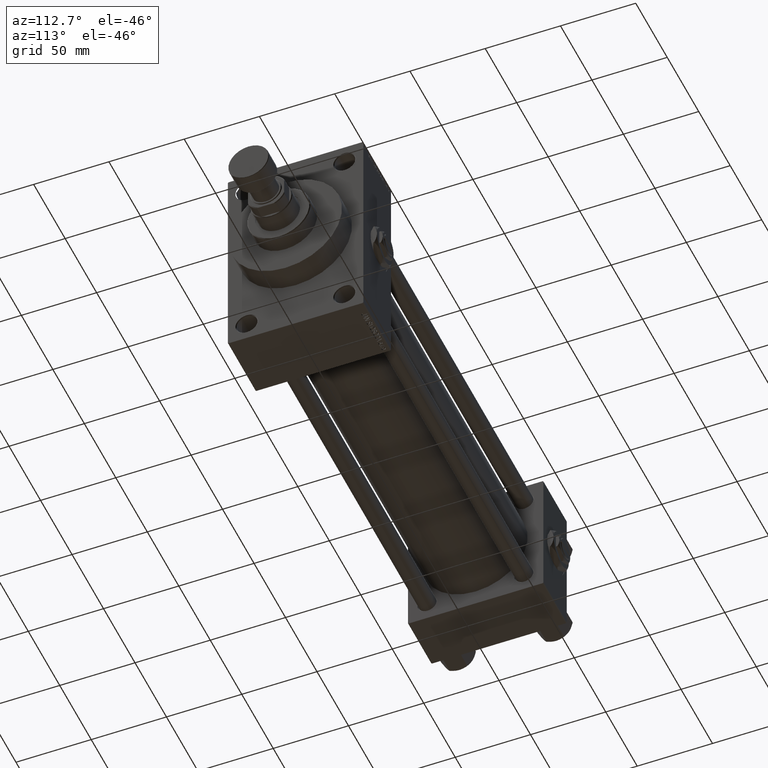
[diagram: clean part render]
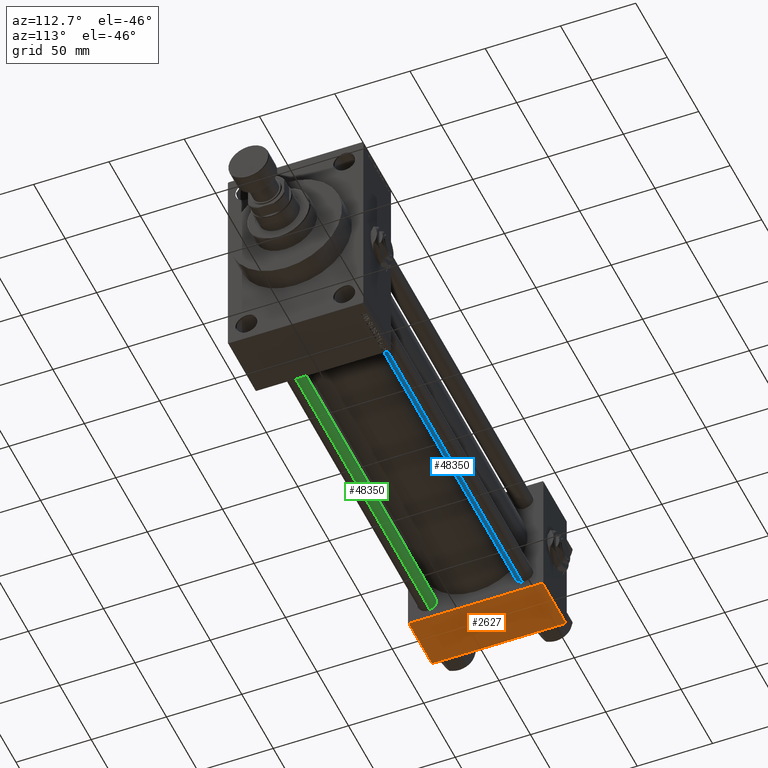
[diagram: same view with three faces highlighted in distinct colors, each labeled with its STEP entity id]
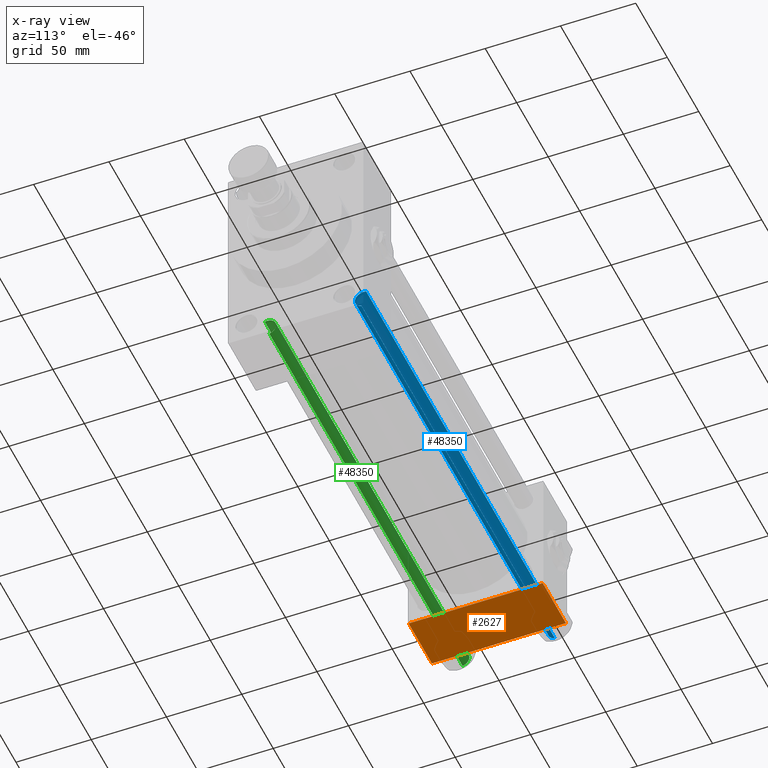
[diagram: x-ray of the same camera — body ghosted, the three highlighted faces saturated]
A machine part, auxiliary view with three faces highlighted in distinct colors.
The next image is the same camera in x-ray (body ghosted, the three faces saturated) — at least one of them is partly hidden behind the body in this view.
Their STEP definitions:

[orange] entity #2627 — the highlighted planar face has unit normal (0, 0, -1).
#988 = LINE ( 'NONE', #20334, #33075 ) ;
#1897 = EDGE_CURVE ( 'NONE', #1996, #45125, #988, .T. ) ;
#1996 = VERTEX_POINT ( 'NONE', #48014 ) ;
#2097 = EDGE_LOOP ( 'NONE', ( #47334, #39949, #8511, #14999 ) ) ;
#2208 = LINE ( 'NONE', #13534, #16404 ) ;
#2627 = ADVANCED_FACE ( 'NONE', ( #44704 ), #21040, .T. ) ;
#3983 = VECTOR ( 'NONE', #4827, 1000.000000000000000 ) ;
#4827 = DIRECTION ( 'NONE',  ( 1.000000000000000000, 0.000000000000000000, 0.000000000000000000 ) ) ;
#6553 = EDGE_CURVE ( 'NONE', #24904, #45125, #2208, .T. ) ;
#8511 = ORIENTED_EDGE ( 'NONE', *, *, #10691, .T. ) ;
#10691 = EDGE_CURVE ( 'NONE', #24457, #1996, #15624, .T. ) ;
#13534 = CARTESIAN_POINT ( 'NONE',  ( 0.000000000000000000, 44.99999999999998579, -44.99999999999998579 ) ) ;
#14999 = ORIENTED_EDGE ( 'NONE', *, *, #1897, .T. ) ;
#15624 = LINE ( 'NONE', #48772, #30220 ) ;
#16404 = VECTOR ( 'NONE', #25350, 1000.000000000000000 ) ;
#20334 = CARTESIAN_POINT ( 'NONE',  ( 0.000000000000000000, -44.49999999999998579, -45.00000000000000000 ) ) ;
#20409 = CARTESIAN_POINT ( 'NONE',  ( 0.000000000000000000, 44.49999999999998579, -44.99999999999998579 ) ) ;
#21040 = PLANE ( 'NONE',  #37959 ) ;
#24457 = VERTEX_POINT ( 'NONE', #40735 ) ;
#24904 = VERTEX_POINT ( 'NONE', #20409 ) ;
#25350 = DIRECTION ( 'NONE',  ( 0.000000000000000000, -1.000000000000000000, -1.541976423090495633E-16 ) ) ;
#27730 = CARTESIAN_POINT ( 'NONE',  ( 37.00000000000000000, 44.49999999999998579, -44.99999999999998579 ) ) ;
#28372 = CARTESIAN_POINT ( 'NONE',  ( 37.00000000000000000, 44.99999999999998579, -44.99999999999998579 ) ) ;
#30220 = VECTOR ( 'NONE', #45265, 1000.000000000000000 ) ;
#32293 = EDGE_CURVE ( 'NONE', #24904, #24457, #39056, .T. ) ;
#33075 = VECTOR ( 'NONE', #43267, 1000.000000000000000 ) ;
#37959 = AXIS2_PLACEMENT_3D ( 'NONE', #28372, #44454, #47983 ) ;
#39056 = LINE ( 'NONE', #27730, #3983 ) ;
#39949 = ORIENTED_EDGE ( 'NONE', *, *, #32293, .T. ) ;
#40735 = CARTESIAN_POINT ( 'NONE',  ( 37.00000000000000000, 44.49999999999998579, -44.99999999999998579 ) ) ;
#43267 = DIRECTION ( 'NONE',  ( -1.000000000000000000, 0.000000000000000000, 0.000000000000000000 ) ) ;
#44454 = DIRECTION ( 'NONE',  ( 0.000000000000000000, 1.541976423090495880E-16, -1.000000000000000000 ) ) ;
#44704 = FACE_OUTER_BOUND ( 'NONE', #2097, .T. ) ;
#45125 = VERTEX_POINT ( 'NONE', #45155 ) ;
#45155 = CARTESIAN_POINT ( 'NONE',  ( 0.000000000000000000, -44.49999999999995737, -45.00000000000000000 ) ) ;
#45265 = DIRECTION ( 'NONE',  ( 0.000000000000000000, -1.000000000000000000, -1.541976423090495633E-16 ) ) ;
#47334 = ORIENTED_EDGE ( 'NONE', *, *, #6553, .F. ) ;
#47983 = DIRECTION ( 'NONE',  ( 0.000000000000000000, 1.000000000000000000, 1.541976423090495880E-16 ) ) ;
#48014 = CARTESIAN_POINT ( 'NONE',  ( 37.00000000000000000, -44.49999999999995737, -45.00000000000000000 ) ) ;
#48772 = CARTESIAN_POINT ( 'NONE',  ( 37.00000000000000000, 44.99999999999998579, -44.99999999999998579 ) ) ;

[blue] entity #48350 — the highlighted cylindrical surface (edge-blend (fillet) strip) has radius 6 mm, axis along (1, -0, 0).
#144 = EDGE_CURVE ( 'NONE', #37336, #24207, #5483, .T. ) ;
#456 = EDGE_CURVE ( 'NONE', #2309, #24513, #26232, .T. ) ;
#930 = EDGE_CURVE ( 'NONE', #24513, #24207, #26642, .T. ) ;
#2309 = VERTEX_POINT ( 'NONE', #44679 ) ;
#2823 = CARTESIAN_POINT ( 'NONE',  ( -6.000000000000000888, 0.000000000000000000, 308.0000000000000000 ) ) ;
#3079 = DIRECTION ( 'NONE',  ( -0.000000000000000000, -0.000000000000000000, -1.000000000000000000 ) ) ;
#3420 = CARTESIAN_POINT ( 'NONE',  ( 0.000000000000000000, 0.000000000000000000, 308.0000000000000000 ) ) ;
#3673 = DIRECTION ( 'NONE',  ( 1.000000000000000000, 0.000000000000000000, 0.000000000000000000 ) ) ;
#4264 = CARTESIAN_POINT ( 'NONE',  ( 0.000000000000000000, 0.000000000000000000, 0.5000000000000559552 ) ) ;
#5483 = LINE ( 'NONE', #20813, #6513 ) ;
#6513 = VECTOR ( 'NONE', #33639, 1000.000000000000000 ) ;
#8046 = DIRECTION ( 'NONE',  ( 1.000000000000000000, 0.000000000000000000, 0.000000000000000000 ) ) ;
#8180 = FACE_OUTER_BOUND ( 'NONE', #22981, .T. ) ;
#8299 = ORIENTED_EDGE ( 'NONE', *, *, #930, .T. ) ;
#11461 = DIRECTION ( 'NONE',  ( -1.000000000000000000, 0.000000000000000000, 0.000000000000000000 ) ) ;
#12620 = AXIS2_PLACEMENT_3D ( 'NONE', #49228, #48970, #3673 ) ;
#14196 = ORIENTED_EDGE ( 'NONE', *, *, #26761, .T. ) ;
#14765 = AXIS2_PLACEMENT_3D ( 'NONE', #3420, #38885, #11461 ) ;
#15576 = DIRECTION ( 'NONE',  ( -0.000000000000000000, -0.000000000000000000, 1.000000000000000000 ) ) ;
#16131 = VECTOR ( 'NONE', #3079, 1000.000000000000000 ) ;
#20413 = CARTESIAN_POINT ( 'NONE',  ( 6.000000000000000888, 7.347880794884120722E-16, 0.5000000000000559552 ) ) ;
#20813 = CARTESIAN_POINT ( 'NONE',  ( 6.000000000000000888, 7.347880794884120722E-16, 308.0000000000000000 ) ) ;
#22981 = EDGE_LOOP ( 'NONE', ( #48542, #14196, #28428, #8299 ) ) ;
#23091 = CIRCLE ( 'NONE', #12620, 6.000000000000000888 ) ;
#24207 = VERTEX_POINT ( 'NONE', #20413 ) ;
#24209 = AXIS2_PLACEMENT_3D ( 'NONE', #4264, #15576, #8046 ) ;
#24513 = VERTEX_POINT ( 'NONE', #25884 ) ;
#25884 = CARTESIAN_POINT ( 'NONE',  ( -6.000000000000000888, 0.000000000000000000, 0.5000000000000559552 ) ) ;
#26232 = LINE ( 'NONE', #2823, #16131 ) ;
#26642 = CIRCLE ( 'NONE', #24209, 6.000000000000000888 ) ;
#26761 = EDGE_CURVE ( 'NONE', #37336, #2309, #23091, .T. ) ;
#28428 = ORIENTED_EDGE ( 'NONE', *, *, #456, .T. ) ;
#30588 = CYLINDRICAL_SURFACE ( 'NONE', #14765, 6.000000000000000888 ) ;
#31920 = CARTESIAN_POINT ( 'NONE',  ( 6.000000000000000888, 7.347880794884120722E-16, 307.4999999999999432 ) ) ;
#33639 = DIRECTION ( 'NONE',  ( -0.000000000000000000, -0.000000000000000000, -1.000000000000000000 ) ) ;
#37336 = VERTEX_POINT ( 'NONE', #31920 ) ;
#38885 = DIRECTION ( 'NONE',  ( -0.000000000000000000, -0.000000000000000000, -1.000000000000000000 ) ) ;
#44679 = CARTESIAN_POINT ( 'NONE',  ( -6.000000000000000888, 0.000000000000000000, 307.4999999999999432 ) ) ;
#48350 = ADVANCED_FACE ( 'NONE', ( #8180 ), #30588, .T. ) ;
#48542 = ORIENTED_EDGE ( 'NONE', *, *, #144, .F. ) ;
#48970 = DIRECTION ( 'NONE',  ( 0.000000000000000000, 0.000000000000000000, -1.000000000000000000 ) ) ;
#49228 = CARTESIAN_POINT ( 'NONE',  ( 0.000000000000000000, 0.000000000000000000, 307.4999999999999432 ) ) ;

[green] entity #48350 — the highlighted cylindrical surface (edge-blend (fillet) strip) has radius 6 mm, axis along (-1, 0, 0).
#144 = EDGE_CURVE ( 'NONE', #37336, #24207, #5483, .T. ) ;
#456 = EDGE_CURVE ( 'NONE', #2309, #24513, #26232, .T. ) ;
#930 = EDGE_CURVE ( 'NONE', #24513, #24207, #26642, .T. ) ;
#2309 = VERTEX_POINT ( 'NONE', #44679 ) ;
#2823 = CARTESIAN_POINT ( 'NONE',  ( -6.000000000000000888, 0.000000000000000000, 308.0000000000000000 ) ) ;
#3079 = DIRECTION ( 'NONE',  ( -0.000000000000000000, -0.000000000000000000, -1.000000000000000000 ) ) ;
#3420 = CARTESIAN_POINT ( 'NONE',  ( 0.000000000000000000, 0.000000000000000000, 308.0000000000000000 ) ) ;
#3673 = DIRECTION ( 'NONE',  ( 1.000000000000000000, 0.000000000000000000, 0.000000000000000000 ) ) ;
#4264 = CARTESIAN_POINT ( 'NONE',  ( 0.000000000000000000, 0.000000000000000000, 0.5000000000000559552 ) ) ;
#5483 = LINE ( 'NONE', #20813, #6513 ) ;
#6513 = VECTOR ( 'NONE', #33639, 1000.000000000000000 ) ;
#8046 = DIRECTION ( 'NONE',  ( 1.000000000000000000, 0.000000000000000000, 0.000000000000000000 ) ) ;
#8180 = FACE_OUTER_BOUND ( 'NONE', #22981, .T. ) ;
#8299 = ORIENTED_EDGE ( 'NONE', *, *, #930, .T. ) ;
#11461 = DIRECTION ( 'NONE',  ( -1.000000000000000000, 0.000000000000000000, 0.000000000000000000 ) ) ;
#12620 = AXIS2_PLACEMENT_3D ( 'NONE', #49228, #48970, #3673 ) ;
#14196 = ORIENTED_EDGE ( 'NONE', *, *, #26761, .T. ) ;
#14765 = AXIS2_PLACEMENT_3D ( 'NONE', #3420, #38885, #11461 ) ;
#15576 = DIRECTION ( 'NONE',  ( -0.000000000000000000, -0.000000000000000000, 1.000000000000000000 ) ) ;
#16131 = VECTOR ( 'NONE', #3079, 1000.000000000000000 ) ;
#20413 = CARTESIAN_POINT ( 'NONE',  ( 6.000000000000000888, 7.347880794884120722E-16, 0.5000000000000559552 ) ) ;
#20813 = CARTESIAN_POINT ( 'NONE',  ( 6.000000000000000888, 7.347880794884120722E-16, 308.0000000000000000 ) ) ;
#22981 = EDGE_LOOP ( 'NONE', ( #48542, #14196, #28428, #8299 ) ) ;
#23091 = CIRCLE ( 'NONE', #12620, 6.000000000000000888 ) ;
#24207 = VERTEX_POINT ( 'NONE', #20413 ) ;
#24209 = AXIS2_PLACEMENT_3D ( 'NONE', #4264, #15576, #8046 ) ;
#24513 = VERTEX_POINT ( 'NONE', #25884 ) ;
#25884 = CARTESIAN_POINT ( 'NONE',  ( -6.000000000000000888, 0.000000000000000000, 0.5000000000000559552 ) ) ;
#26232 = LINE ( 'NONE', #2823, #16131 ) ;
#26642 = CIRCLE ( 'NONE', #24209, 6.000000000000000888 ) ;
#26761 = EDGE_CURVE ( 'NONE', #37336, #2309, #23091, .T. ) ;
#28428 = ORIENTED_EDGE ( 'NONE', *, *, #456, .T. ) ;
#30588 = CYLINDRICAL_SURFACE ( 'NONE', #14765, 6.000000000000000888 ) ;
#31920 = CARTESIAN_POINT ( 'NONE',  ( 6.000000000000000888, 7.347880794884120722E-16, 307.4999999999999432 ) ) ;
#33639 = DIRECTION ( 'NONE',  ( -0.000000000000000000, -0.000000000000000000, -1.000000000000000000 ) ) ;
#37336 = VERTEX_POINT ( 'NONE', #31920 ) ;
#38885 = DIRECTION ( 'NONE',  ( -0.000000000000000000, -0.000000000000000000, -1.000000000000000000 ) ) ;
#44679 = CARTESIAN_POINT ( 'NONE',  ( -6.000000000000000888, 0.000000000000000000, 307.4999999999999432 ) ) ;
#48350 = ADVANCED_FACE ( 'NONE', ( #8180 ), #30588, .T. ) ;
#48542 = ORIENTED_EDGE ( 'NONE', *, *, #144, .F. ) ;
#48970 = DIRECTION ( 'NONE',  ( 0.000000000000000000, 0.000000000000000000, -1.000000000000000000 ) ) ;
#49228 = CARTESIAN_POINT ( 'NONE',  ( 0.000000000000000000, 0.000000000000000000, 307.4999999999999432 ) ) ;